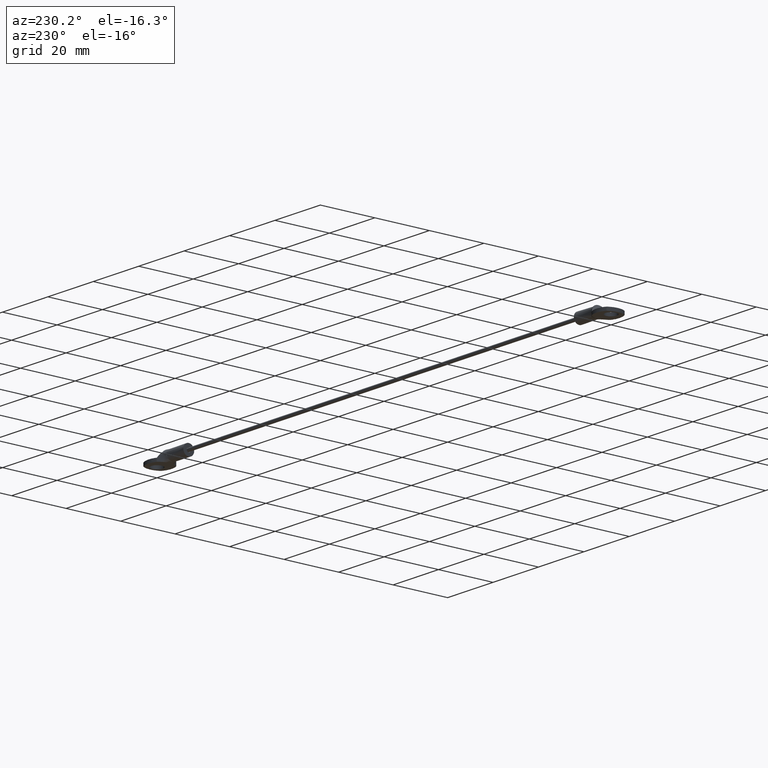
[diagram: clean part render]
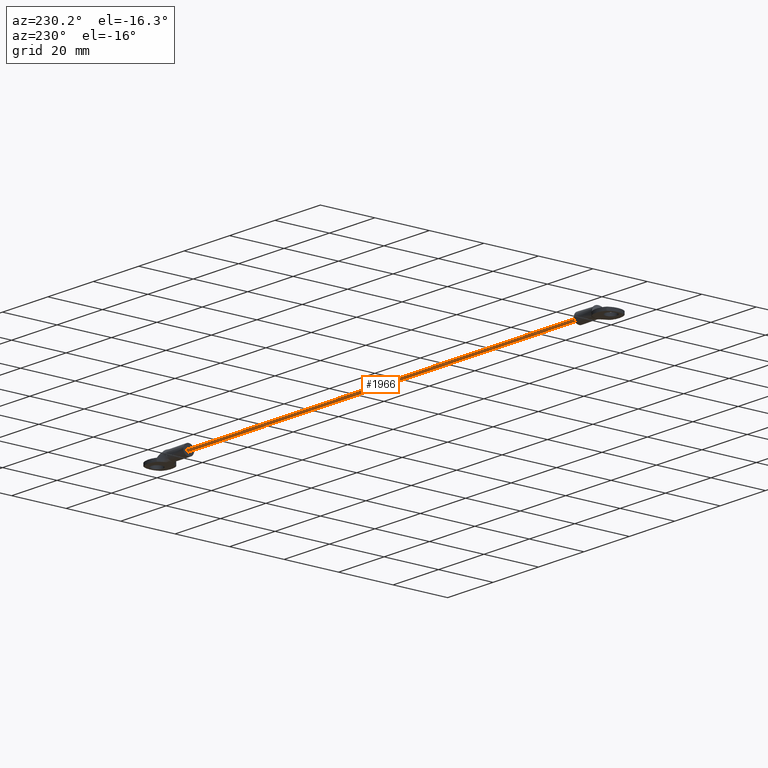
[diagram: same view with one face highlighted and labeled with its STEP entity id]
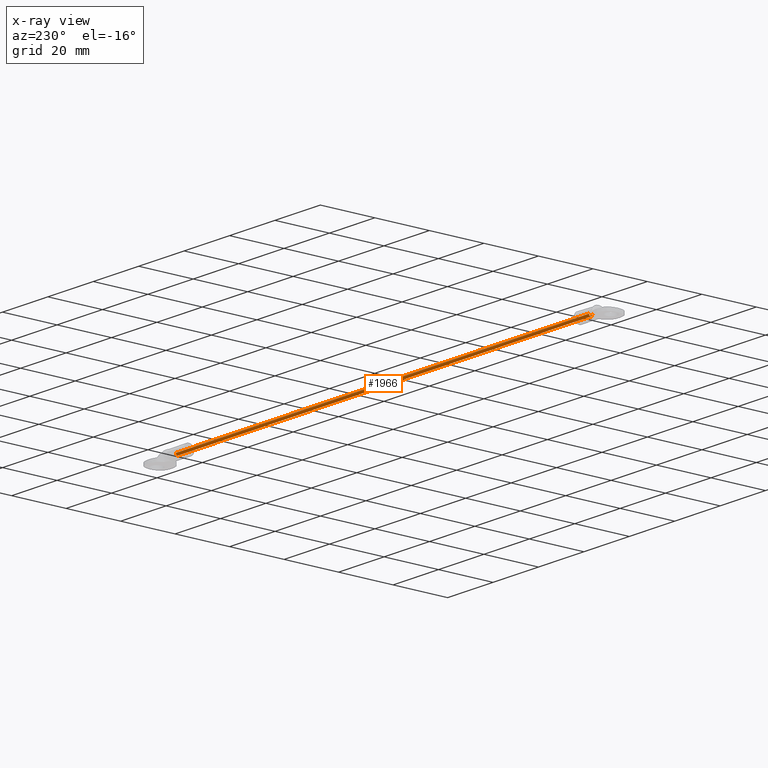
[diagram: x-ray of the same camera — body ghosted, the highlighted face saturated]
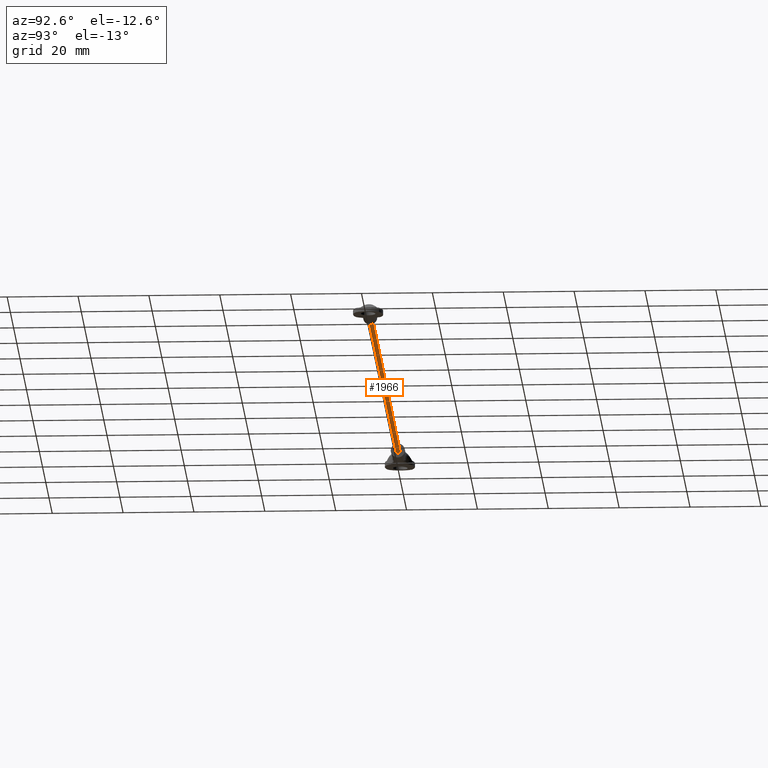
[diagram: same view with one face highlighted and labeled with its STEP entity id]
A machine part, auxiliary view. The second image highlights one B-rep face of the part: STEP entity #1966.
The next image is the same camera in x-ray: the body ghosted, the highlighted face saturated — about 0% of this face is hidden behind the body in this view.
A second angle (auxiliary view) of the same face is appended — the face is thin or edge-on in the first view.
In plain terms, the highlighted face is a freeform B-spline surface patch.
Its self-contained STEP definition (entity closure, byte-faithful):
#1864=CARTESIAN_POINT('',(-4.449999999999994,0.595805715818200,2.070820540794055));
#1865=CARTESIAN_POINT('',(-4.449999999999993,0.597832569269163,2.053768837182786));
#1866=CARTESIAN_POINT('',(-4.449999999999993,0.598880879053120,2.036629123720914));
#1867=CARTESIAN_POINT('',(-4.449999999999993,0.635510002774034,1.437748244667794));
#1868=CARTESIAN_POINT('',(-4.449999999999993,0.036629123720914,1.401119120946880));
#1869=CARTESIAN_POINT('',(-4.449999999999993,-0.562251755332206,1.364489997225966));
#1870=CARTESIAN_POINT('',(-4.449999999999993,-0.598880879053120,1.963370876279086));
#1871=CARTESIAN_POINT('',(-195.663750000000140,0.595805715818200,2.070820540794055));
#1872=CARTESIAN_POINT('',(-195.663750000000020,0.597832569269163,2.053768837182786));
#1873=CARTESIAN_POINT('',(-195.663750000000110,0.598880879053120,2.036629123720914));
#1874=CARTESIAN_POINT('',(-195.663750000000080,0.635510002774034,1.437748244667794));
#1875=CARTESIAN_POINT('',(-195.663750000000110,0.036629123720914,1.401119120946880));
#1876=CARTESIAN_POINT('',(-195.663750000000080,-0.562251755332206,1.364489997225966));
#1877=CARTESIAN_POINT('',(-195.663750000000110,-0.598880879053120,1.963370876279086));
#1885=(BOUNDED_SURFACE()B_SPLINE_SURFACE(2,1,((#1864,#1871),(#1865,#1872),(#1866,#1873),(#1867,#1874),(#1868,#1875),(#1869,#1876),(#1870,#1877)),.UNSPECIFIED.,.F.,.F.,.U.)B_SPLINE_SURFACE_WITH_KNOTS((3,2,2,3),(2,2),(3.078760800517997,3.141592653589793,4.712388980384690,6.283185307179586),(0.0,191.213750000000090),.UNSPECIFIED.)GEOMETRIC_REPRESENTATION_ITEM()RATIONAL_B_SPLINE_SURFACE(((0.977505800795127,0.977505800795127),(0.988284271247462,0.988284271247462),(1.0,1.0),(0.707106781186548,0.707106781186548),(1.0,1.0),(0.707106781186548,0.707106781186548),(1.0,1.0)))REPRESENTATION_ITEM('')SURFACE());
#1886=CARTESIAN_POINT('',(-8.999999999999993,0.595805715589397,2.070820542718947));
#1887=VERTEX_POINT('',#1886);
#1888=CARTESIAN_POINT('',(-9.0,0.0,1.400000000000000));
#1889=VERTEX_POINT('',#1888);
#1890=CARTESIAN_POINT('',(-8.999999999999993,0.595805715589397,2.070820542718947));
#1891=CARTESIAN_POINT('',(-9.0,0.600000000000000,2.035534473736388));
#1892=CARTESIAN_POINT('',(-9.0,0.600000000000000,2.0));
#1893=CARTESIAN_POINT('',(-9.0,0.600000000000000,1.400000000000000));
#1894=CARTESIAN_POINT('',(-9.0,0.0,1.400000000000000));
#1902=(BOUNDED_CURVE()B_SPLINE_CURVE(2,(#1890,#1891,#1892,#1893,#1894),.UNSPECIFIED.,.F.,.U.)B_SPLINE_CURVE_WITH_KNOTS((3,2,3),(0.229562472423634,0.250000000000000,0.500000000000000),.UNSPECIFIED.)CURVE()GEOMETRIC_REPRESENTATION_ITEM()RATIONAL_B_SPLINE_CURVE((0.956026752047501,0.976055947054278,1.0,0.707106781186547,1.0))REPRESENTATION_ITEM(''));
#1903=EDGE_CURVE('',#1887,#1889,#1902,.T.);
#1904=ORIENTED_EDGE('',*,*,#1903,.T.);
#1905=CARTESIAN_POINT('',(-9.000000000000004,-0.598880879052782,1.963370876273560));
#1906=VERTEX_POINT('',#1905);
#1907=CARTESIAN_POINT('',(-9.0,0.0,1.400000000000000));
#1908=CARTESIAN_POINT('',(-9.000000000000002,-0.564423640132985,1.400000000000000));
#1909=CARTESIAN_POINT('',(-9.000000000000004,-0.598880879052782,1.963370876273560));
#1917=(BOUNDED_CURVE()B_SPLINE_CURVE(2,(#1907,#1908,#1909),.UNSPECIFIED.,.F.,.U.)B_SPLINE_CURVE_WITH_KNOTS((3,3),(0.500000000000000,0.739332962238785),.UNSPECIFIED.)CURVE()GEOMETRIC_REPRESENTATION_ITEM()RATIONAL_B_SPLINE_CURVE((1.0,0.719603993286895,0.976072041666380))REPRESENTATION_ITEM(''));
#1918=EDGE_CURVE('',#1889,#1906,#1917,.T.);
#1919=ORIENTED_EDGE('',*,*,#1918,.T.);
#1920=CARTESIAN_POINT('',(-191.0,-0.598880879052782,1.963370876273560));
#1921=VERTEX_POINT('',#1920);
#1922=CARTESIAN_POINT('',(-9.000000000000004,-0.598880879052782,1.963370876273560));
#1923=CARTESIAN_POINT('',(-191.0,-0.598880879052782,1.963370876273560));
#1924=QUASI_UNIFORM_CURVE('',1,(#1922,#1923),.UNSPECIFIED.,.F.,.U.);
#1925=EDGE_CURVE('',#1906,#1921,#1924,.T.);
#1926=ORIENTED_EDGE('',*,*,#1925,.T.);
#1927=CARTESIAN_POINT('',(-191.0,0.0,1.400000000000000));
#1928=VERTEX_POINT('',#1927);
#1929=CARTESIAN_POINT('',(-191.0,0.0,1.400000000000000));
#1930=CARTESIAN_POINT('',(-191.0,-0.564423640132985,1.400000000000000));
#1931=CARTESIAN_POINT('',(-190.999999999999970,-0.598880879052782,1.963370876273560));
#1939=(BOUNDED_CURVE()B_SPLINE_CURVE(2,(#1929,#1930,#1931),.UNSPECIFIED.,.F.,.U.)B_SPLINE_CURVE_WITH_KNOTS((3,3),(0.500000000000000,0.739332962238785),.UNSPECIFIED.)CURVE()GEOMETRIC_REPRESENTATION_ITEM()RATIONAL_B_SPLINE_CURVE((1.0,0.719603993286895,0.976072041666380))REPRESENTATION_ITEM(''));
#1940=EDGE_CURVE('',#1928,#1921,#1939,.T.);
#1941=ORIENTED_EDGE('',*,*,#1940,.F.);
#1942=CARTESIAN_POINT('',(-191.0,0.595805715589397,2.070820542718949));
#1943=VERTEX_POINT('',#1942);
#1944=CARTESIAN_POINT('',(-191.000000000000030,0.595805715589397,2.070820542718950));
#1945=CARTESIAN_POINT('',(-191.0,0.600000000000000,2.035534473736390));
#1946=CARTESIAN_POINT('',(-191.0,0.600000000000000,2.0));
#1947=CARTESIAN_POINT('',(-191.000000000000030,0.600000000000000,1.400000000000000));
#1948=CARTESIAN_POINT('',(-191.0,0.0,1.400000000000000));
#1956=(BOUNDED_CURVE()B_SPLINE_CURVE(2,(#1944,#1945,#1946,#1947,#1948),.UNSPECIFIED.,.F.,.U.)B_SPLINE_CURVE_WITH_KNOTS((3,2,3),(0.229562472423632,0.250000000000000,0.500000000000000),.UNSPECIFIED.)CURVE()GEOMETRIC_REPRESENTATION_ITEM()RATIONAL_B_SPLINE_CURVE((0.956026752047498,0.976055947054276,1.0,0.707106781186547,1.0))REPRESENTATION_ITEM(''));
#1957=EDGE_CURVE('',#1943,#1928,#1956,.T.);
#1958=ORIENTED_EDGE('',*,*,#1957,.F.);
#1959=CARTESIAN_POINT('',(-8.999999999999993,0.595805715589397,2.070820542718947));
#1960=CARTESIAN_POINT('',(-191.0,0.595805715589397,2.070820542718949));
#1961=QUASI_UNIFORM_CURVE('',1,(#1959,#1960),.UNSPECIFIED.,.F.,.U.);
#1962=EDGE_CURVE('',#1887,#1943,#1961,.T.);
#1963=ORIENTED_EDGE('',*,*,#1962,.F.);
#1964=EDGE_LOOP('',(#1904,#1919,#1926,#1941,#1958,#1963));
#1965=FACE_OUTER_BOUND('',#1964,.T.);
#1966=ADVANCED_FACE('',(#1965),#1885,.T.);